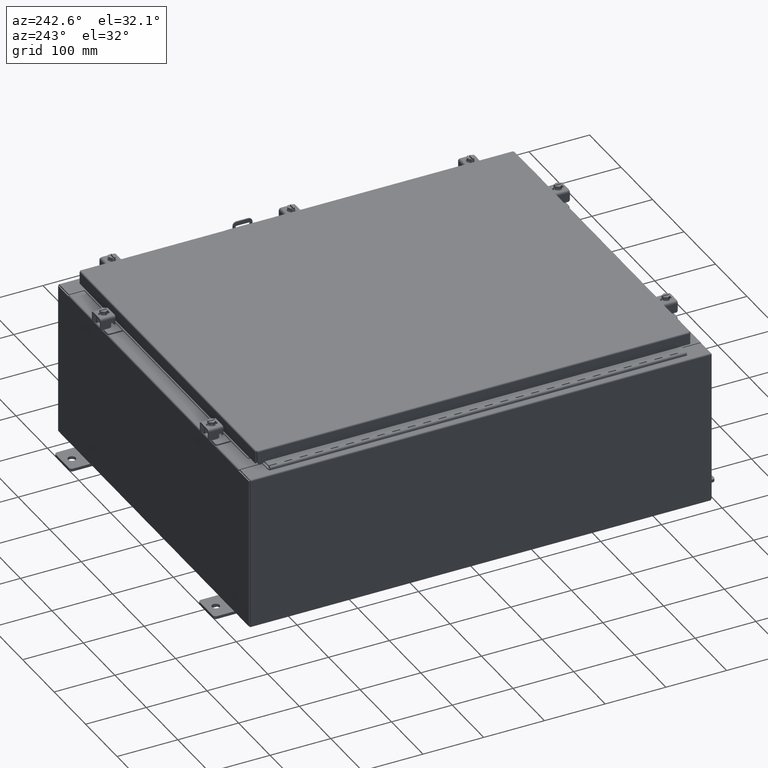
[diagram: clean part render]
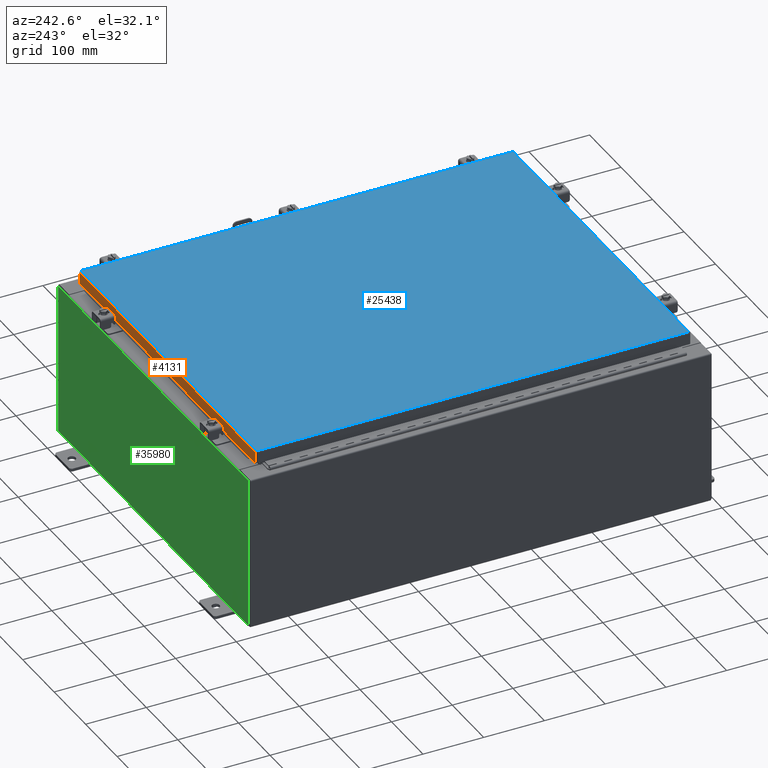
[diagram: same view with three faces highlighted in distinct colors, each labeled with its STEP entity id]
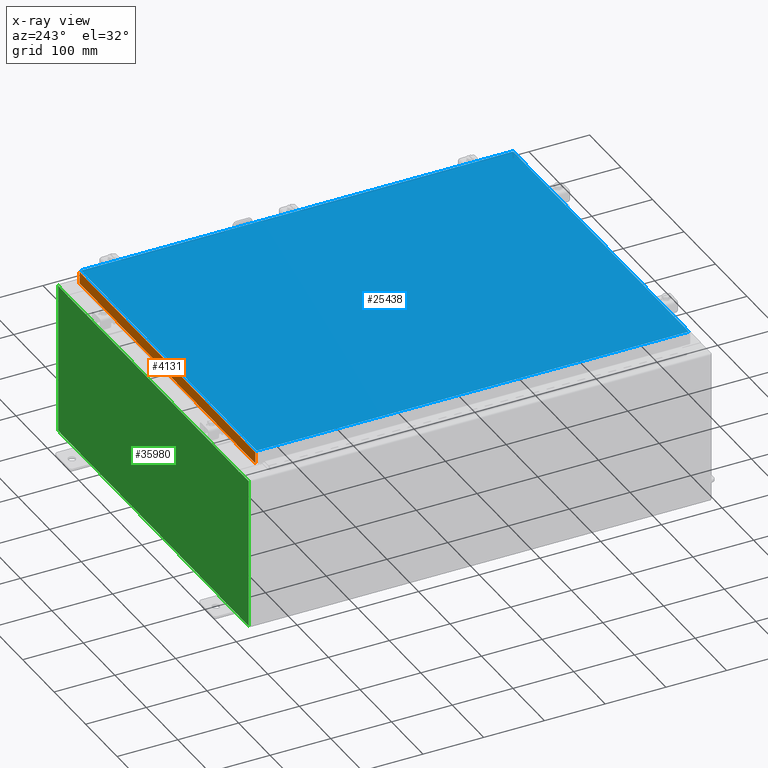
[diagram: x-ray of the same camera — body ghosted, the three highlighted faces saturated]
A machine part, auxiliary view with three faces highlighted in distinct colors.
The next image is the same camera in x-ray (body ghosted, the three faces saturated) — at least one of them is partly hidden behind the body in this view.
Their STEP definitions:

[orange] entity #4131 — the highlighted planar face has unit normal (0, -1, -0).
#217 = ORIENTED_EDGE ( 'NONE', *, *, #19369, .F. ) ;
#288 = LINE ( 'NONE', #36147, #7942 ) ;
#685 = DIRECTION ( 'NONE',  ( -1.000000000000000000, -3.475696988576942200E-031, -9.473942235605600700E-046 ) ) ;
#716 = VECTOR ( 'NONE', #685, 39.37007874015748100 ) ;
#1096 = CARTESIAN_POINT ( 'NONE',  ( -4.898647335700341400E-030, 14.09399999999999900, 3.999012166344507700E-014 ) ) ;
#1294 = CARTESIAN_POINT ( 'NONE',  ( -10.98915786437626900, 14.09400000000000100, -0.8500000000000024200 ) ) ;
#1308 = CARTESIAN_POINT ( 'NONE',  ( -10.98915786437626700, 14.09399999999999900, -0.08770000000000007000 ) ) ;
#1398 = LINE ( 'NONE', #3408, #19959 ) ;
#2333 = EDGE_CURVE ( 'NONE', #23376, #17804, #1398, .T. ) ;
#2631 = LINE ( 'NONE', #11120, #24817 ) ;
#3408 = CARTESIAN_POINT ( 'NONE',  ( -10.98915786437626900, 14.09399999999999900, -0.07469999999999978000 ) ) ;
#4131 = ADVANCED_FACE ( 'NONE', ( #24518 ), #29012, .F. ) ;
#4827 = DIRECTION ( 'NONE',  ( 1.000000000000000000, -4.379057701015054300E-047, 1.233005954894504400E-016 ) ) ;
#5820 = DIRECTION ( 'NONE',  ( -0.0000000000000000000, 2.818880942772350300E-015, -1.000000000000000000 ) ) ;
#6567 = EDGE_CURVE ( 'NONE', #16856, #9389, #2631, .T. ) ;
#6779 = CARTESIAN_POINT ( 'NONE',  ( -10.23915786437627100, 14.09399999999999900, -0.8500000000000033100 ) ) ;
#6850 = EDGE_CURVE ( 'NONE', #13430, #9389, #16639, .T. ) ;
#7942 = VECTOR ( 'NONE', #15921, 39.37007874015748100 ) ;
#7991 = DIRECTION ( 'NONE',  ( 0.0000000000000000000, 2.818880942772350300E-015, -1.000000000000000000 ) ) ;
#8158 = CARTESIAN_POINT ( 'NONE',  ( -10.23915786437627100, 14.09399999999999900, -0.8500000000000033100 ) ) ;
#8473 = CARTESIAN_POINT ( 'NONE',  ( 10.98915786437626700, 14.09399999999999900, -0.08770000000000007000 ) ) ;
#9229 = ORIENTED_EDGE ( 'NONE', *, *, #17146, .F. ) ;
#9389 = VERTEX_POINT ( 'NONE', #18147 ) ;
#9684 = DIRECTION ( 'NONE',  ( 1.000000000000000000, -0.0000000000000000000, -0.0000000000000000000 ) ) ;
#10126 = EDGE_LOOP ( 'NONE', ( #217, #25116, #23515, #9229, #20771, #22024 ) ) ;
#10412 = VERTEX_POINT ( 'NONE', #8158 ) ;
#11120 = CARTESIAN_POINT ( 'NONE',  ( -11.07799999999999900, 14.09400000000000100, -0.8500000000000024200 ) ) ;
#11809 = EDGE_CURVE ( 'NONE', #17804, #10412, #288, .T. ) ;
#13430 = VERTEX_POINT ( 'NONE', #8473 ) ;
#15738 = VECTOR ( 'NONE', #28749, 39.37007874015748100 ) ;
#15921 = DIRECTION ( 'NONE',  ( 1.000000000000000000, -4.379057701015054300E-047, 1.233005954894504400E-016 ) ) ;
#15946 = CARTESIAN_POINT ( 'NONE',  ( 10.98915786437626900, 14.09399999999999900, 3.999012166344507700E-014 ) ) ;
#16639 = LINE ( 'NONE', #15946, #15738 ) ;
#16856 = VERTEX_POINT ( 'NONE', #34619 ) ;
#16917 = DIRECTION ( 'NONE',  ( 3.475696988576941300E-031, -1.000000000000000000, -2.818880942772350300E-015 ) ) ;
#17146 = EDGE_CURVE ( 'NONE', #10412, #16856, #25141, .T. ) ;
#17804 = VERTEX_POINT ( 'NONE', #1294 ) ;
#18147 = CARTESIAN_POINT ( 'NONE',  ( 10.98915786437626700, 14.09400000000000100, -0.8499999999999996400 ) ) ;
#19369 = EDGE_CURVE ( 'NONE', #13430, #23376, #24713, .T. ) ;
#19959 = VECTOR ( 'NONE', #5820, 39.37007874015748100 ) ;
#20771 = ORIENTED_EDGE ( 'NONE', *, *, #11809, .F. ) ;
#20933 = CARTESIAN_POINT ( 'NONE',  ( -11.07799999999999900, 14.09399999999999900, -0.08770000000000007000 ) ) ;
#22024 = ORIENTED_EDGE ( 'NONE', *, *, #2333, .F. ) ;
#22130 = AXIS2_PLACEMENT_3D ( 'NONE', #1096, #16917, #7991 ) ;
#23376 = VERTEX_POINT ( 'NONE', #1308 ) ;
#23515 = ORIENTED_EDGE ( 'NONE', *, *, #6567, .F. ) ;
#24518 = FACE_OUTER_BOUND ( 'NONE', #10126, .T. ) ;
#24713 = LINE ( 'NONE', #20933, #716 ) ;
#24817 = VECTOR ( 'NONE', #4827, 39.37007874015748100 ) ;
#25116 = ORIENTED_EDGE ( 'NONE', *, *, #6850, .T. ) ;
#25141 = LINE ( 'NONE', #6779, #28914 ) ;
#28749 = DIRECTION ( 'NONE',  ( 0.0000000000000000000, 2.818880942772350300E-015, -1.000000000000000000 ) ) ;
#28914 = VECTOR ( 'NONE', #9684, 39.37007874015748100 ) ;
#29012 = PLANE ( 'NONE',  #22130 ) ;
#34619 = CARTESIAN_POINT ( 'NONE',  ( 10.23915786437626700, 14.09399999999999900, -0.8500000000000033100 ) ) ;
#36147 = CARTESIAN_POINT ( 'NONE',  ( -11.07799999999999900, 14.09400000000000100, -0.8500000000000024200 ) ) ;

[blue] entity #25438 — the highlighted planar face has unit normal (0, 0, -1).
#178 = VECTOR ( 'NONE', #36437, 39.37007874015748100 ) ;
#1307 = ORIENTED_EDGE ( 'NONE', *, *, #13231, .T. ) ;
#1982 = ORIENTED_EDGE ( 'NONE', *, *, #10186, .T. ) ;
#3106 = EDGE_LOOP ( 'NONE', ( #1982, #18903, #35691, #1307 ) ) ;
#4415 = VECTOR ( 'NONE', #22736, 39.37007874015748100 ) ;
#6015 = CARTESIAN_POINT ( 'NONE',  ( 10.99030000000000000, 14.00629999999999800, -2.048885995248197400E-016 ) ) ;
#6391 = CARTESIAN_POINT ( 'NONE',  ( -10.99029999999999600, -14.00629999999999800, -2.219626494852214000E-016 ) ) ;
#8421 = CARTESIAN_POINT ( 'NONE',  ( -10.99030000000000000, 14.00630000000000100, -2.048885995248197400E-016 ) ) ;
#9903 = CARTESIAN_POINT ( 'NONE',  ( -10.99029999999999800, -14.00629999999999800, -2.048885995248197400E-016 ) ) ;
#10186 = EDGE_CURVE ( 'NONE', #13904, #18923, #27479, .T. ) ;
#10234 = CARTESIAN_POINT ( 'NONE',  ( 0.0000000000000000000, 0.0000000000000000000, 0.0000000000000000000 ) ) ;
#13231 = EDGE_CURVE ( 'NONE', #18562, #13904, #30894, .T. ) ;
#13315 = CARTESIAN_POINT ( 'NONE',  ( -10.99030000000000000, 14.00630000000000100, -2.048885995248197400E-016 ) ) ;
#13904 = VERTEX_POINT ( 'NONE', #9903 ) ;
#15828 = DIRECTION ( 'NONE',  ( 0.0000000000000000000, 1.000000000000000000, 0.0000000000000000000 ) ) ;
#16072 = DIRECTION ( 'NONE',  ( -1.000000000000000000, 0.0000000000000000000, -0.0000000000000000000 ) ) ;
#17154 = CARTESIAN_POINT ( 'NONE',  ( 10.99030000000000000, 14.00629999999999800, -2.048885995248197400E-016 ) ) ;
#17325 = VECTOR ( 'NONE', #15828, 39.37007874015748100 ) ;
#18562 = VERTEX_POINT ( 'NONE', #8421 ) ;
#18903 = ORIENTED_EDGE ( 'NONE', *, *, #27059, .T. ) ;
#18923 = VERTEX_POINT ( 'NONE', #27263 ) ;
#19657 = VERTEX_POINT ( 'NONE', #6015 ) ;
#20407 = VECTOR ( 'NONE', #34464, 39.37007874015748100 ) ;
#22736 = DIRECTION ( 'NONE',  ( 1.000000000000000000, -0.0000000000000000000, -0.0000000000000000000 ) ) ;
#25438 = ADVANCED_FACE ( 'NONE', ( #30513 ), #27567, .F. ) ;
#27059 = EDGE_CURVE ( 'NONE', #18923, #19657, #31771, .T. ) ;
#27263 = CARTESIAN_POINT ( 'NONE',  ( 10.99030000000000000, -14.00629999999999800, -2.048885995248197400E-016 ) ) ;
#27479 = LINE ( 'NONE', #6391, #4415 ) ;
#27567 = PLANE ( 'NONE',  #33552 ) ;
#28062 = LINE ( 'NONE', #17154, #20407 ) ;
#30513 = FACE_OUTER_BOUND ( 'NONE', #3106, .T. ) ;
#30894 = LINE ( 'NONE', #13315, #178 ) ;
#31771 = LINE ( 'NONE', #33148, #17325 ) ;
#33148 = CARTESIAN_POINT ( 'NONE',  ( 10.99030000000000000, -14.00629999999999800, -2.048885995248197400E-016 ) ) ;
#33387 = DIRECTION ( 'NONE',  ( 0.0000000000000000000, 0.0000000000000000000, -1.000000000000000000 ) ) ;
#33552 = AXIS2_PLACEMENT_3D ( 'NONE', #10234, #33387, #16072 ) ;
#34464 = DIRECTION ( 'NONE',  ( -1.000000000000000000, -0.0000000000000000000, -0.0000000000000000000 ) ) ;
#34694 = EDGE_CURVE ( 'NONE', #19657, #18562, #28062, .T. ) ;
#35691 = ORIENTED_EDGE ( 'NONE', *, *, #34694, .T. ) ;
#36437 = DIRECTION ( 'NONE',  ( 0.0000000000000000000, -1.000000000000000000, 0.0000000000000000000 ) ) ;

[green] entity #35980 — the highlighted planar face has unit normal (0, -1, 0).
#495 = ORIENTED_EDGE ( 'NONE', *, *, #8651, .T. ) ;
#1101 = DIRECTION ( 'NONE',  ( 0.0000000000000000000, 0.0000000000000000000, 1.000000000000000000 ) ) ;
#1116 = ORIENTED_EDGE ( 'NONE', *, *, #35290, .F. ) ;
#1556 = VERTEX_POINT ( 'NONE', #13376 ) ;
#1592 = VECTOR ( 'NONE', #20976, 39.37007874015748100 ) ;
#2885 = DIRECTION ( 'NONE',  ( -0.0000000000000000000, 1.000000000000000000, -0.0000000000000000000 ) ) ;
#2949 = VECTOR ( 'NONE', #7790, 39.37007874015748100 ) ;
#3420 = CARTESIAN_POINT ( 'NONE',  ( 0.0000000000000000000, 0.0000000000000000000, 0.0000000000000000000 ) ) ;
#3866 = LINE ( 'NONE', #9691, #2949 ) ;
#4425 = EDGE_CURVE ( 'NONE', #9849, #13069, #6797, .T. ) ;
#4846 = CIRCLE ( 'NONE', #5622, 0.01867499999999949400 ) ;
#5372 = VECTOR ( 'NONE', #10446, 39.37007874015748100 ) ;
#5579 = AXIS2_PLACEMENT_3D ( 'NONE', #11543, #31761, #14452 ) ;
#5622 = AXIS2_PLACEMENT_3D ( 'NONE', #7302, #2885, #36742 ) ;
#6327 = ORIENTED_EDGE ( 'NONE', *, *, #4425, .T. ) ;
#6797 = LINE ( 'NONE', #19436, #13570 ) ;
#7003 = CARTESIAN_POINT ( 'NONE',  ( -11.92530000000000000, 0.0000000000000000000, 4.925300000000000000 ) ) ;
#7302 = CARTESIAN_POINT ( 'NONE',  ( -10.65587500000000200, 0.0000000000000000000, 4.874950000000000100 ) ) ;
#7540 = VECTOR ( 'NONE', #27773, 39.37007874015748100 ) ;
#7574 = ORIENTED_EDGE ( 'NONE', *, *, #16316, .T. ) ;
#7790 = DIRECTION ( 'NONE',  ( -1.000000000000000000, -0.0000000000000000000, -0.0000000000000000000 ) ) ;
#8651 = EDGE_CURVE ( 'NONE', #18545, #9849, #3866, .T. ) ;
#9689 = CARTESIAN_POINT ( 'NONE',  ( 10.63720000000000400, 0.0000000000000000000, 0.0000000000000000000 ) ) ;
#9691 = CARTESIAN_POINT ( 'NONE',  ( -11.92530000000000000, 0.0000000000000000000, -4.925300000000000000 ) ) ;
#9846 = CARTESIAN_POINT ( 'NONE',  ( 11.92530000000000000, 0.0000000000000000000, 4.925300000000000000 ) ) ;
#9849 = VERTEX_POINT ( 'NONE', #34107 ) ;
#10445 = CARTESIAN_POINT ( 'NONE',  ( -10.63720000000000400, -7.171100983368691200E-016, 4.912300000000000100 ) ) ;
#10446 = DIRECTION ( 'NONE',  ( 1.000000000000000000, 0.0000000000000000000, 0.0000000000000000000 ) ) ;
#10507 = EDGE_CURVE ( 'NONE', #19057, #34782, #4846, .T. ) ;
#10610 = VECTOR ( 'NONE', #30060, 39.37007874015748100 ) ;
#11223 = FACE_OUTER_BOUND ( 'NONE', #11430, .T. ) ;
#11318 = VERTEX_POINT ( 'NONE', #22294 ) ;
#11430 = EDGE_LOOP ( 'NONE', ( #14262, #12377, #13451, #20729, #13738, #1116, #11826, #30249, #20930, #495, #6327, #7574 ) ) ;
#11543 = CARTESIAN_POINT ( 'NONE',  ( 10.65587500000000200, 0.0000000000000000000, 4.874950000000000100 ) ) ;
#11680 = CARTESIAN_POINT ( 'NONE',  ( -10.67455000000000200, 0.0000000000000000000, 4.874950000000000100 ) ) ;
#11769 = EDGE_CURVE ( 'NONE', #37297, #19057, #26106, .T. ) ;
#11826 = ORIENTED_EDGE ( 'NONE', *, *, #27735, .F. ) ;
#12377 = ORIENTED_EDGE ( 'NONE', *, *, #10507, .F. ) ;
#12446 = EDGE_CURVE ( 'NONE', #34782, #23554, #24695, .T. ) ;
#12760 = DIRECTION ( 'NONE',  ( 0.0000000000000000000, 0.0000000000000000000, -1.000000000000000000 ) ) ;
#13045 = LINE ( 'NONE', #24900, #5372 ) ;
#13069 = VERTEX_POINT ( 'NONE', #7003 ) ;
#13099 = AXIS2_PLACEMENT_3D ( 'NONE', #3420, #15037, #35273 ) ;
#13376 = CARTESIAN_POINT ( 'NONE',  ( 10.63720000000000400, 0.0000000000000000000, 4.874950000000000100 ) ) ;
#13451 = ORIENTED_EDGE ( 'NONE', *, *, #11769, .F. ) ;
#13553 = CARTESIAN_POINT ( 'NONE',  ( -11.92530000000000000, 0.0000000000000000000, 4.925300000000000000 ) ) ;
#13570 = VECTOR ( 'NONE', #21829, 39.37007874015748100 ) ;
#13738 = ORIENTED_EDGE ( 'NONE', *, *, #26457, .F. ) ;
#14262 = ORIENTED_EDGE ( 'NONE', *, *, #12446, .F. ) ;
#14452 = DIRECTION ( 'NONE',  ( 0.0000000000000000000, 0.0000000000000000000, -1.000000000000000000 ) ) ;
#15037 = DIRECTION ( 'NONE',  ( 0.0000000000000000000, -1.000000000000000000, 0.0000000000000000000 ) ) ;
#16316 = EDGE_CURVE ( 'NONE', #13069, #23554, #13045, .T. ) ;
#17490 = VECTOR ( 'NONE', #12760, 39.37007874015748100 ) ;
#18064 = CARTESIAN_POINT ( 'NONE',  ( -10.67455000000000200, -0.0000000000000000000, 0.0000000000000000000 ) ) ;
#18493 = EDGE_CURVE ( 'NONE', #37297, #11318, #30589, .T. ) ;
#18545 = VERTEX_POINT ( 'NONE', #31301 ) ;
#18568 = CIRCLE ( 'NONE', #5579, 0.01867499999999949400 ) ;
#18650 = VECTOR ( 'NONE', #32290, 39.37007874015748100 ) ;
#19057 = VERTEX_POINT ( 'NONE', #36585 ) ;
#19136 = CARTESIAN_POINT ( 'NONE',  ( -10.63720000000000400, -7.171100983368691200E-016, 4.912300000000000100 ) ) ;
#19436 = CARTESIAN_POINT ( 'NONE',  ( -11.92530000000000000, 0.0000000000000000000, 4.925300000000000000 ) ) ;
#20020 = EDGE_CURVE ( 'NONE', #33903, #33162, #26029, .T. ) ;
#20091 = VECTOR ( 'NONE', #1101, 39.37007874015748100 ) ;
#20149 = VECTOR ( 'NONE', #30837, 39.37007874015748100 ) ;
#20160 = LINE ( 'NONE', #9846, #10610 ) ;
#20729 = ORIENTED_EDGE ( 'NONE', *, *, #18493, .T. ) ;
#20930 = ORIENTED_EDGE ( 'NONE', *, *, #32059, .T. ) ;
#20976 = DIRECTION ( 'NONE',  ( 0.0000000000000000000, 0.0000000000000000000, 1.000000000000000000 ) ) ;
#21388 = CARTESIAN_POINT ( 'NONE',  ( -10.63720000000000400, -0.0000000000000000000, 0.0000000000000000000 ) ) ;
#21829 = DIRECTION ( 'NONE',  ( -0.0000000000000000000, -0.0000000000000000000, 1.000000000000000000 ) ) ;
#22294 = CARTESIAN_POINT ( 'NONE',  ( 10.63720000000000400, 0.0000000000000000000, 4.912300000000000100 ) ) ;
#22396 = CARTESIAN_POINT ( 'NONE',  ( 10.67455000000000200, 0.0000000000000000000, 4.925300000000000000 ) ) ;
#23554 = VERTEX_POINT ( 'NONE', #31085 ) ;
#23670 = PLANE ( 'NONE',  #13099 ) ;
#24695 = LINE ( 'NONE', #18064, #1592 ) ;
#24900 = CARTESIAN_POINT ( 'NONE',  ( -11.92530000000000000, 0.0000000000000000000, 4.925300000000000000 ) ) ;
#26029 = LINE ( 'NONE', #13553, #20149 ) ;
#26106 = LINE ( 'NONE', #21388, #17490 ) ;
#26457 = EDGE_CURVE ( 'NONE', #1556, #11318, #27743, .T. ) ;
#27735 = EDGE_CURVE ( 'NONE', #33903, #28381, #33988, .T. ) ;
#27743 = LINE ( 'NONE', #9689, #20091 ) ;
#27773 = DIRECTION ( 'NONE',  ( 1.000000000000000000, 0.0000000000000000000, 0.0000000000000000000 ) ) ;
#28381 = VERTEX_POINT ( 'NONE', #35166 ) ;
#30060 = DIRECTION ( 'NONE',  ( 0.0000000000000000000, 0.0000000000000000000, -1.000000000000000000 ) ) ;
#30249 = ORIENTED_EDGE ( 'NONE', *, *, #20020, .T. ) ;
#30589 = LINE ( 'NONE', #10445, #7540 ) ;
#30837 = DIRECTION ( 'NONE',  ( 1.000000000000000000, 0.0000000000000000000, 0.0000000000000000000 ) ) ;
#31085 = CARTESIAN_POINT ( 'NONE',  ( -10.67455000000000200, 0.0000000000000000000, 4.925300000000000000 ) ) ;
#31301 = CARTESIAN_POINT ( 'NONE',  ( 11.92530000000000000, 0.0000000000000000000, -4.925300000000000000 ) ) ;
#31761 = DIRECTION ( 'NONE',  ( -0.0000000000000000000, 1.000000000000000000, -0.0000000000000000000 ) ) ;
#32059 = EDGE_CURVE ( 'NONE', #33162, #18545, #20160, .T. ) ;
#32138 = CARTESIAN_POINT ( 'NONE',  ( 11.92530000000000000, 0.0000000000000000000, 4.925300000000000000 ) ) ;
#32290 = DIRECTION ( 'NONE',  ( -4.340572780400004900E-014, 0.0000000000000000000, -1.000000000000000000 ) ) ;
#33162 = VERTEX_POINT ( 'NONE', #32138 ) ;
#33903 = VERTEX_POINT ( 'NONE', #22396 ) ;
#33988 = LINE ( 'NONE', #35211, #18650 ) ;
#34107 = CARTESIAN_POINT ( 'NONE',  ( -11.92530000000000000, 0.0000000000000000000, -4.925300000000000000 ) ) ;
#34782 = VERTEX_POINT ( 'NONE', #11680 ) ;
#35166 = CARTESIAN_POINT ( 'NONE',  ( 10.67455000000000200, 0.0000000000000000000, 4.874950000000000100 ) ) ;
#35211 = CARTESIAN_POINT ( 'NONE',  ( 10.67454999999979000, -0.0000000000000000000, -4.633366117301795800E-013 ) ) ;
#35273 = DIRECTION ( 'NONE',  ( 0.0000000000000000000, -0.0000000000000000000, -1.000000000000000000 ) ) ;
#35290 = EDGE_CURVE ( 'NONE', #28381, #1556, #18568, .T. ) ;
#35980 = ADVANCED_FACE ( 'NONE', ( #11223 ), #23670, .F. ) ;
#36585 = CARTESIAN_POINT ( 'NONE',  ( -10.63720000000000400, -0.0000000000000000000, 4.874950000000000100 ) ) ;
#36742 = DIRECTION ( 'NONE',  ( 0.0000000000000000000, 0.0000000000000000000, -1.000000000000000000 ) ) ;
#37297 = VERTEX_POINT ( 'NONE', #19136 ) ;